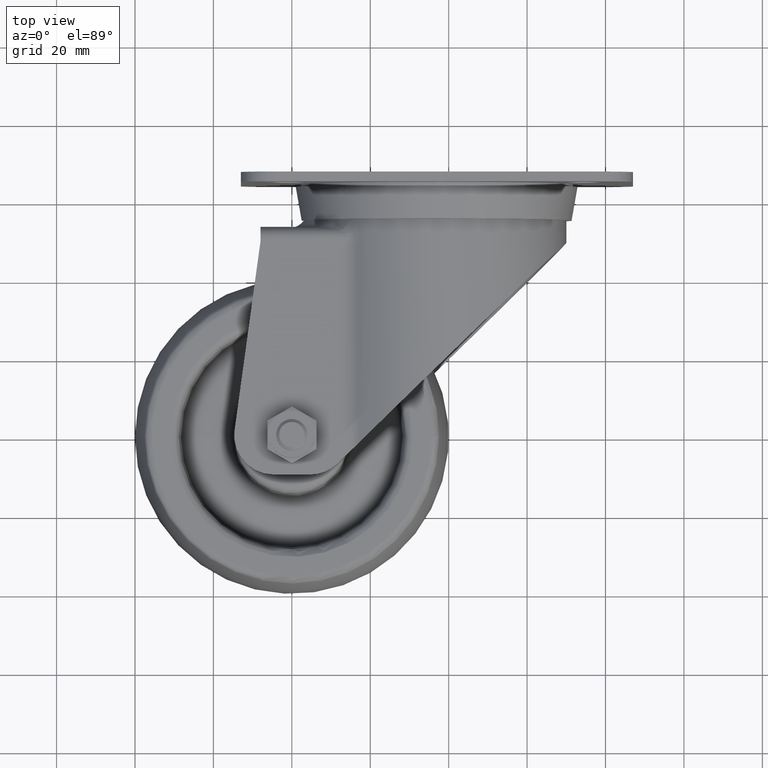
[diagram: clean part render]
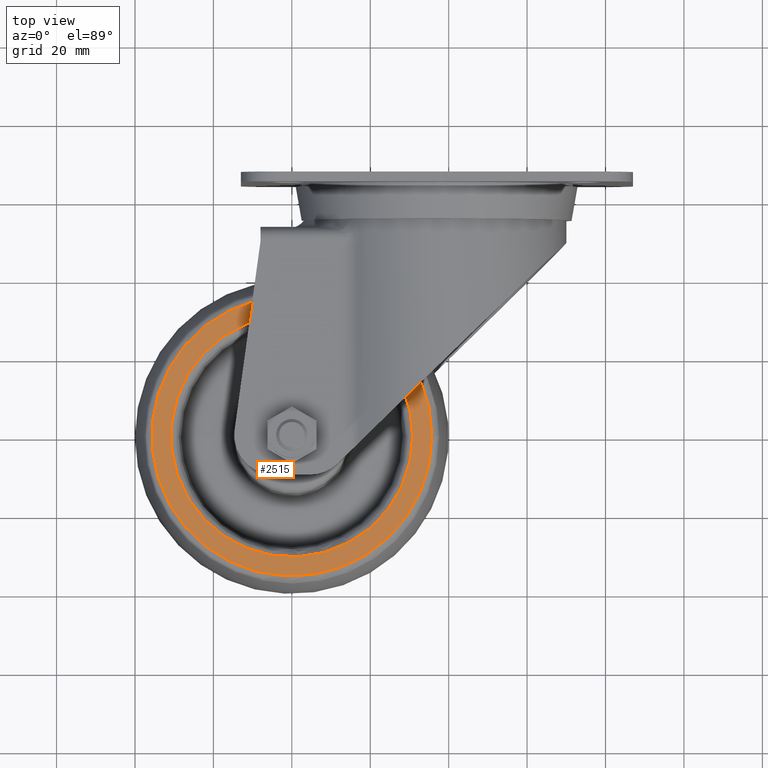
[diagram: same view with one face highlighted and labeled with its STEP entity id]
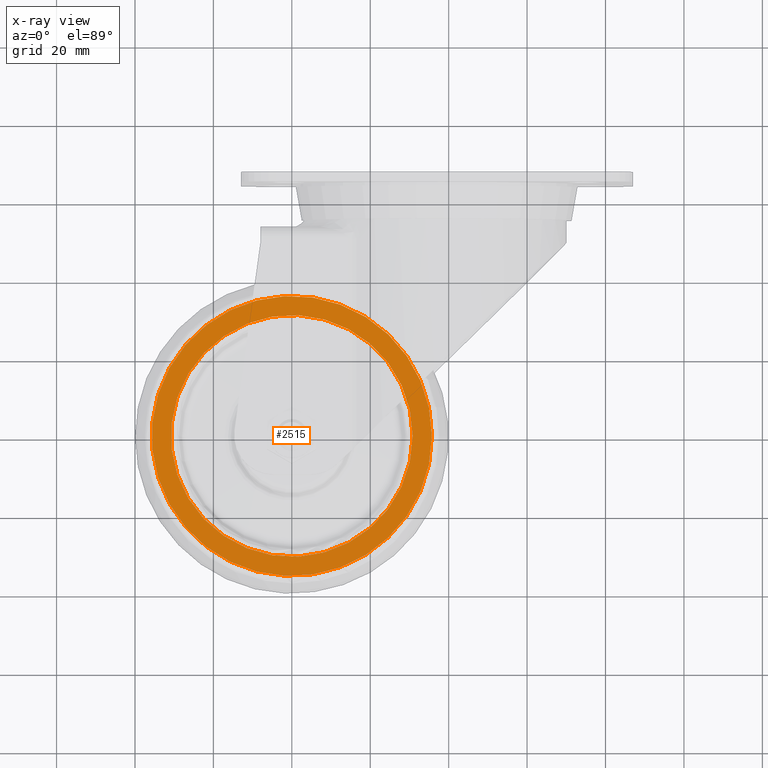
[diagram: x-ray of the same camera — body ghosted, the highlighted face saturated]
A machine part, top view. The second image highlights one B-rep face of the part: STEP entity #2515.
The next image is the same camera in x-ray: the body ghosted, the highlighted face saturated — about 0% of this face is hidden behind the body in this view.
In plain terms, the highlighted planar face has unit normal (0, 0, 1).
Its self-contained STEP definition (entity closure, byte-faithful):
#178=FACE_BOUND('',#491,.T.);
#321=FACE_OUTER_BOUND('',#490,.T.);
#490=EDGE_LOOP('',(#2156));
#491=EDGE_LOOP('',(#2157));
#635=CIRCLE('',#2810,30.8326623480348);
#661=CIRCLE('',#2845,35.7071421427142);
#1118=VERTEX_POINT('',#4552);
#1137=VERTEX_POINT('',#4608);
#1450=EDGE_CURVE('',#1118,#1118,#635,.T.);
#1479=EDGE_CURVE('',#1137,#1137,#661,.T.);
#2156=ORIENTED_EDGE('',*,*,#1479,.F.);
#2157=ORIENTED_EDGE('',*,*,#1450,.T.);
#2226=PLANE('',#2847);
#2515=ADVANCED_FACE('',(#321,#178),#2226,.T.);
#2810=AXIS2_PLACEMENT_3D('',#4553,#3509,#3510);
#2845=AXIS2_PLACEMENT_3D('',#4610,#3582,#3583);
#2847=AXIS2_PLACEMENT_3D('',#4612,#3586,#3587);
#3509=DIRECTION('center_axis',(0.,0.,-1.));
#3510=DIRECTION('ref_axis',(1.,0.,0.));
#3582=DIRECTION('center_axis',(0.,0.,-1.));
#3583=DIRECTION('ref_axis',(1.,0.,0.));
#3586=DIRECTION('center_axis',(0.,0.,1.));
#3587=DIRECTION('ref_axis',(1.,0.,0.));
#4552=CARTESIAN_POINT('',(30.8326623480348,-7.55157484333269E-15,15.));
#4553=CARTESIAN_POINT('Origin',(0.,0.,15.));
#4608=CARTESIAN_POINT('',(35.7071421427142,-8.74543862896133E-15,15.));
#4610=CARTESIAN_POINT('Origin',(0.,0.,15.));
#4612=CARTESIAN_POINT('Origin',(32.4163311740174,-7.93944902466243E-15,
15.));